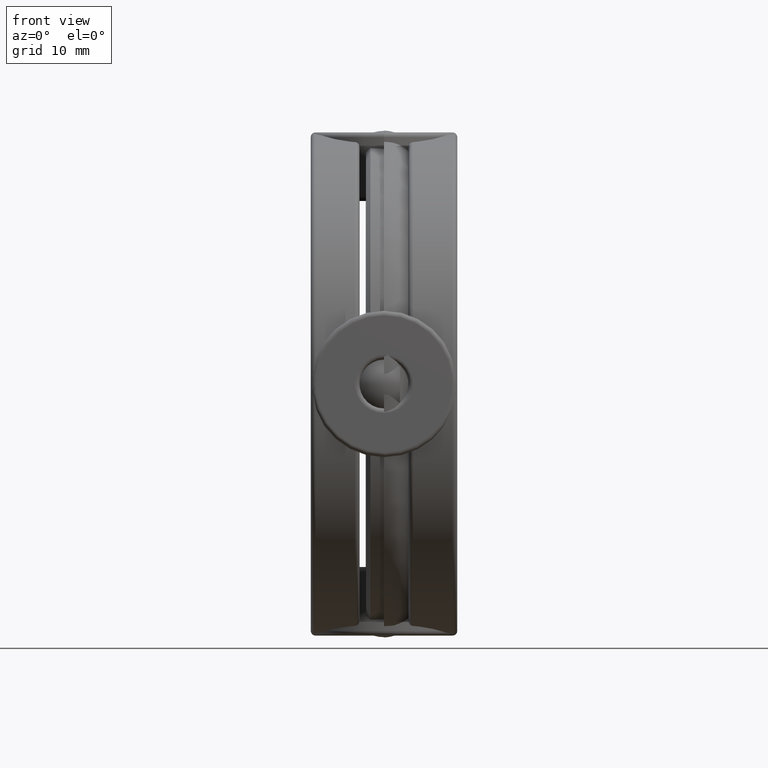
[diagram: clean part render]
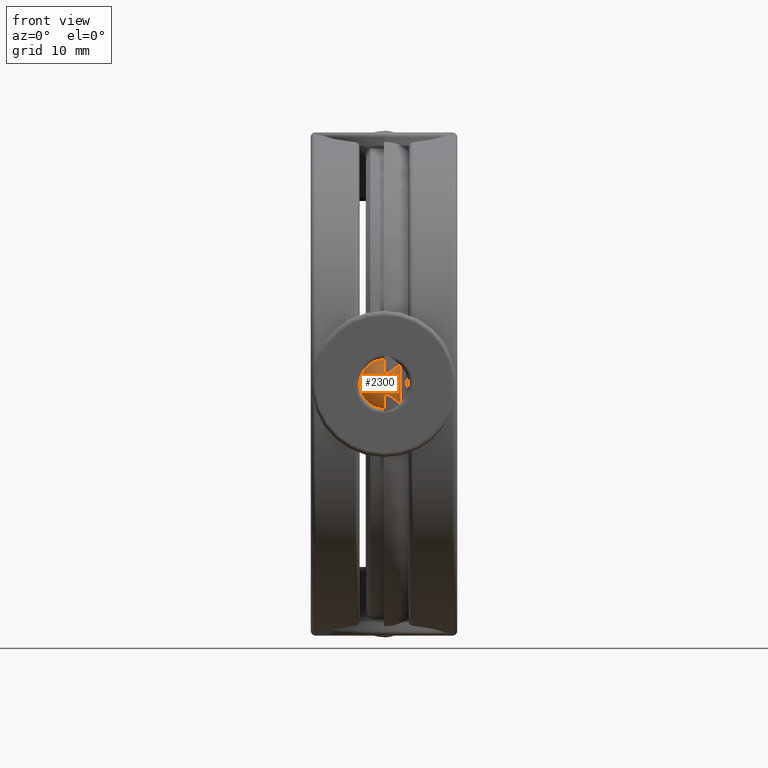
[diagram: same view with one face highlighted and labeled with its STEP entity id]
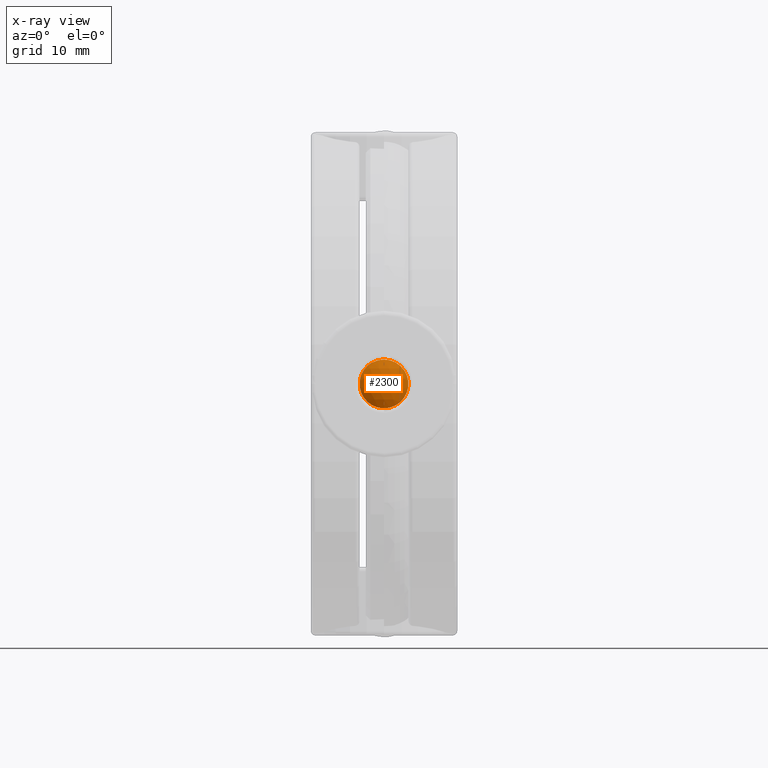
[diagram: x-ray of the same camera — body ghosted, the highlighted face saturated]
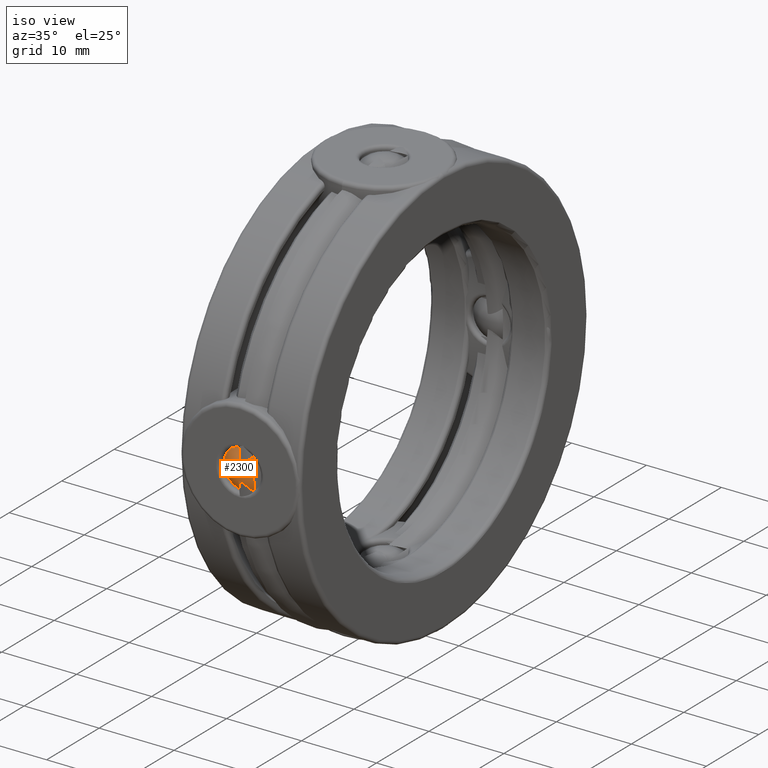
[diagram: same view with one face highlighted and labeled with its STEP entity id]
A machine part, front view. The second image highlights one B-rep face of the part: STEP entity #2300.
The next image is the same camera in x-ray: the body ghosted, the highlighted face saturated — about 0% of this face is hidden behind the body in this view.
A second angle (iso view) of the same face is appended — the face is thin or edge-on in the first view.
In plain terms, the highlighted spherical surface has radius 3.9624 mm.
Its self-contained STEP definition (entity closure, byte-faithful):
#44 = VERTEX_POINT ( 'NONE', #1761 ) ;
#276 = CARTESIAN_POINT ( 'NONE',  ( 5.929115334727287500E-017, -0.9350000000000000500, 0.0000000000000000000 ) ) ;
#277 = EDGE_LOOP ( 'NONE', ( #2999 ) ) ;
#590 = EDGE_CURVE ( 'NONE', #44, #44, #824, .T. ) ;
#673 = AXIS2_PLACEMENT_3D ( 'NONE', #276, #2033, #2774 ) ;
#741 = DIRECTION ( 'NONE',  ( 0.0000000000000000000, 0.0000000000000000000, -1.000000000000000000 ) ) ;
#762 = CARTESIAN_POINT ( 'NONE',  ( 0.0000000000000000000, -1.050371395915928400, 0.0000000000000000000 ) ) ;
#824 = CIRCLE ( 'NONE', #1142, 0.1050021000000005300 ) ;
#1142 = AXIS2_PLACEMENT_3D ( 'NONE', #762, #3226, #741 ) ;
#1761 = CARTESIAN_POINT ( 'NONE',  ( 0.0000000000000000000, -1.050371395915928400, -0.1050021000000005300 ) ) ;
#1921 = FACE_OUTER_BOUND ( 'NONE', #277, .T. ) ;
#2016 = SPHERICAL_SURFACE ( 'NONE', #673, 0.1560000000000000600 ) ;
#2033 = DIRECTION ( 'NONE',  ( -0.0000000000000000000, 0.0000000000000000000, 1.000000000000000000 ) ) ;
#2300 = ADVANCED_FACE ( 'NONE', ( #1921 ), #2016, .T. ) ;
#2774 = DIRECTION ( 'NONE',  ( 1.000000000000000000, 0.0000000000000000000, 0.0000000000000000000 ) ) ;
#2999 = ORIENTED_EDGE ( 'NONE', *, *, #590, .T. ) ;
#3226 = DIRECTION ( 'NONE',  ( 0.0000000000000000000, -1.000000000000000000, 0.0000000000000000000 ) ) ;